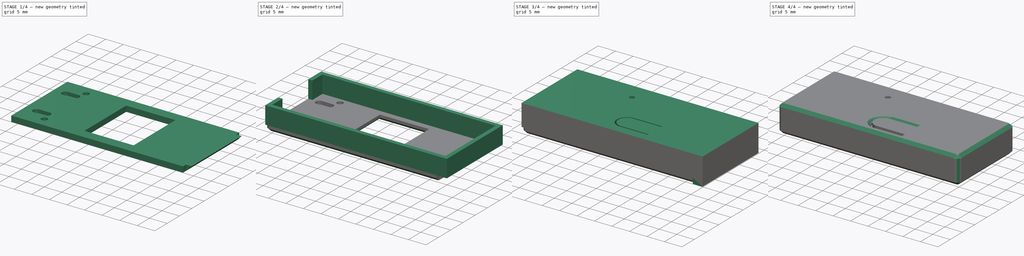
[diagram: build sequence overview — one tinted view per stage of 4, left to right]
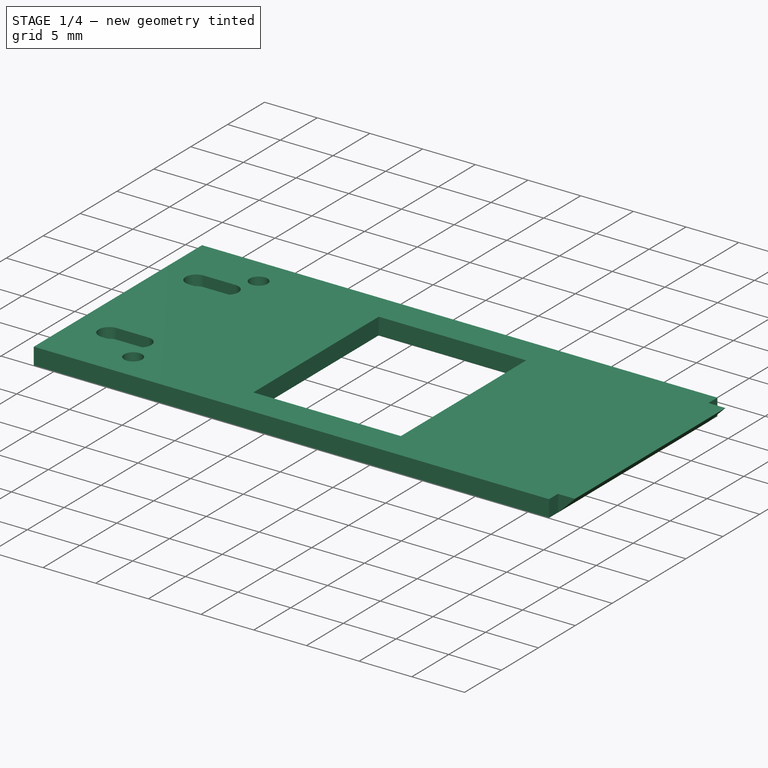
[diagram: stage 1 of 4 — iso view after this stage's code; geometry added in this stage tinted green]
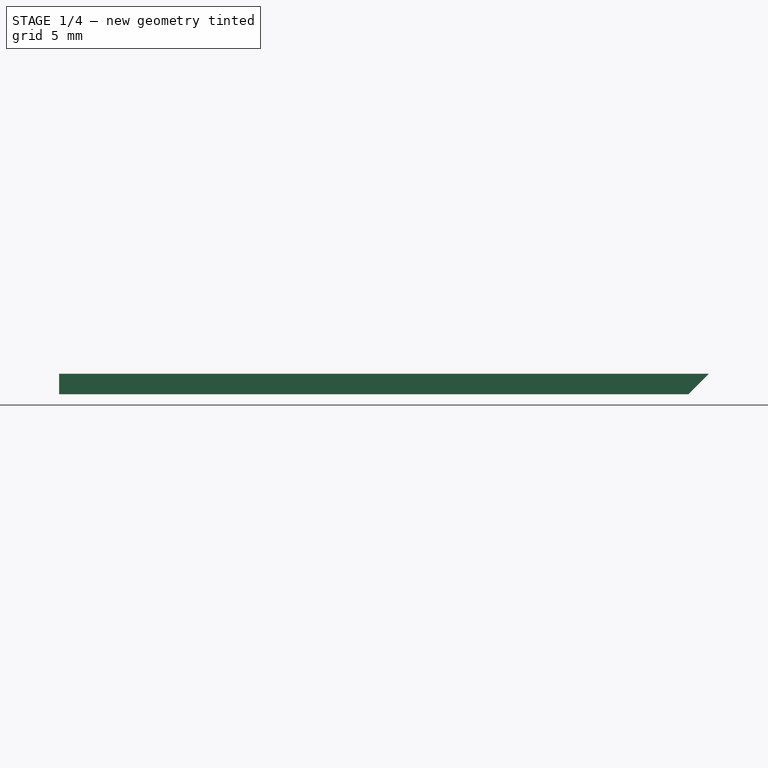
[diagram: stage 1 of 4 — front view after this stage's code; geometry added in this stage tinted green]
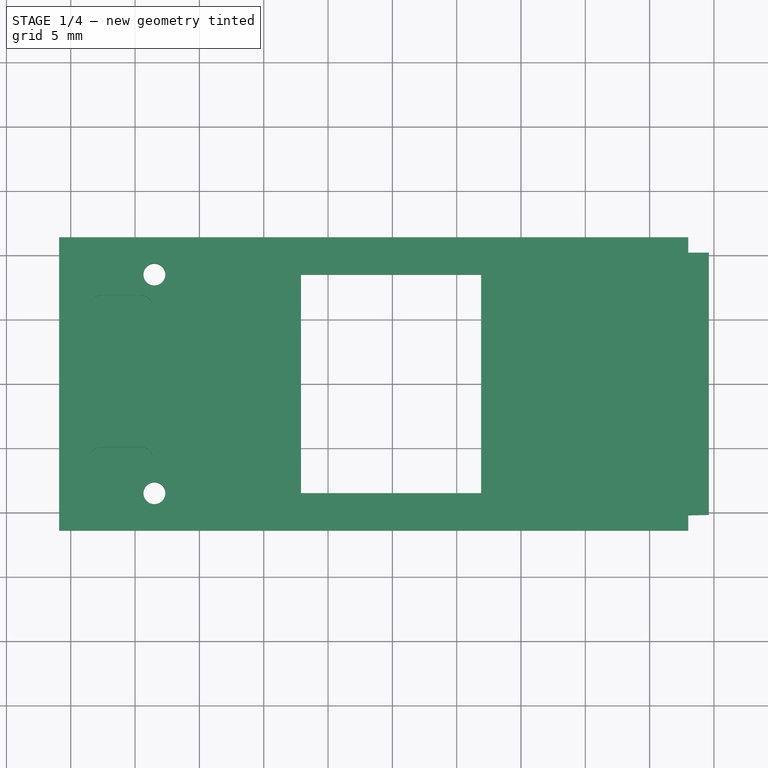
[diagram: stage 1 of 4 — top view after this stage's code; geometry added in this stage tinted green]
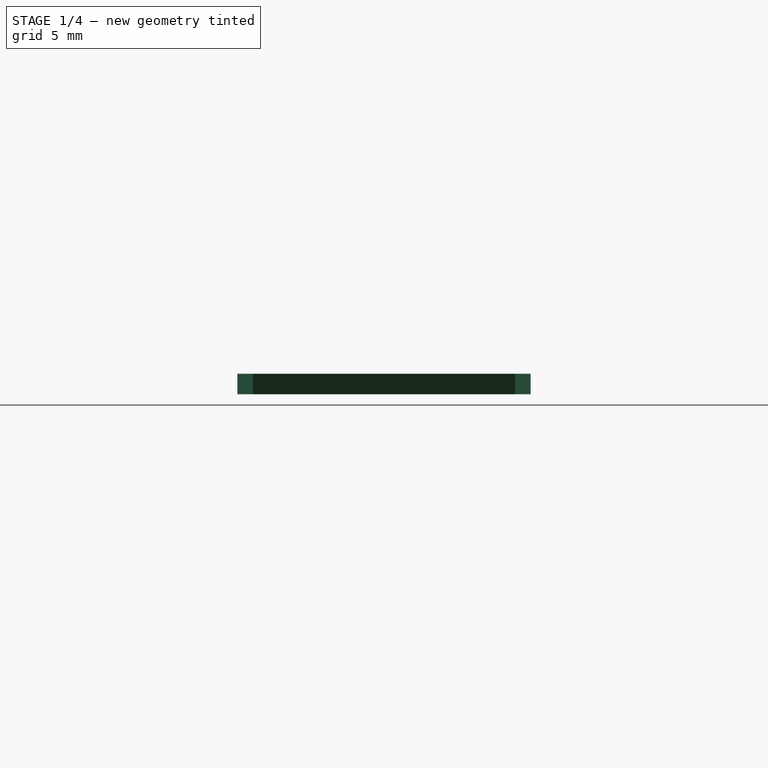
[diagram: stage 1 of 4 — right view after this stage's code; geometry added in this stage tinted green]
FCSTD DOCUMENT  (FreeCAD 1.0R)
Label: housing
License: All rights reserved
LicenseURL: https://en.wikipedia.org/wiki/All_rights_reserved
objects: Sketcher::SketchObject×7, PartDesign::Pad×6, PartDesign::Chamfer×4, PartDesign::Fillet×2, PartDesign::Body×2, PartDesign::Pocket×1
note: 55 computed .brp shape members not serialized (recipe doc carries the construction recipe); baked Part::Feature solids carry a one-line shape summary decoded from their .brp

FEATURE [Sketcher::SketchObject] Sketch005
  ArcFitTolerance = 1e-06
  AttachmentSupport = -> [XY_Plane001]
  FullyConstrained = true
  MakeInternals = false
  MapMode = 5
  sketch-geometry (18):
    g0: LineSegment [constr] StartX=-25.9 StartY=11.4 StartZ=0 EndX=-25.9 EndY=-11.4 EndZ=0
    g1: LineSegment [constr] StartX=-25.9 StartY=-11.4 StartZ=0 EndX=25.9 EndY=-11.4 EndZ=0
    g2: LineSegment [constr] StartX=25.9 StartY=-11.4 StartZ=0 EndX=25.9 EndY=11.4 EndZ=0
    g3: LineSegment [constr] StartX=25.9 StartY=11.4 StartZ=0 EndX=-25.9 EndY=11.4 EndZ=0
    g4: LineSegment StartX=-25.9 StartY=-11.4 StartZ=0 EndX=23 EndY=-11.4 EndZ=0
    g5: LineSegment StartX=23 StartY=11.4 StartZ=0 EndX=-25.9 EndY=11.4 EndZ=0
    g6: LineSegment StartX=-25.9 StartY=11.4 StartZ=0 EndX=-25.9 EndY=-11.4 EndZ=0
    g7: LineSegment StartX=23 StartY=11.4 StartZ=0 EndX=23 EndY=10.2 EndZ=0
    g8: LineSegment StartX=23 StartY=10.2 StartZ=0 EndX=24.6 EndY=10.2 EndZ=0
    g9: LineSegment StartX=24.6 StartY=10.2 StartZ=0 EndX=24.6 EndY=-10.2 EndZ=0
    g10: LineSegment StartX=24.6 StartY=-10.2 StartZ=0 EndX=23 EndY=-10.2 EndZ=0
    g11: LineSegment StartX=23 StartY=-10.2 StartZ=0 EndX=23 EndY=-11.4 EndZ=0
    g12: Circle CenterX=-18.5 CenterY=8.5 CenterZ=0 NormalX=0 NormalY=0 NormalZ=1 AngleXU=0 Radius=0.85
    g13: Circle CenterX=-18.5 CenterY=-8.5 CenterZ=0 NormalX=0 NormalY=0 NormalZ=1 AngleXU=0 Radius=0.85
    g14: LineSegment StartX=-7.1 StartY=8.5 StartZ=0 EndX=-7.1 EndY=-8.5 EndZ=0
    g15: LineSegment StartX=-7.1 StartY=-8.5 StartZ=0 EndX=6.9 EndY=-8.5 EndZ=0
    g16: LineSegment StartX=6.9 StartY=-8.5 StartZ=0 EndX=6.9 EndY=8.5 EndZ=0
    g17: LineSegment StartX=6.9 StartY=8.5 StartZ=0 EndX=-7.1 EndY=8.5 EndZ=0
  constraints (48):
    c: Coincident(g0,g1)
    c: Coincident(g1,g2)
    c: Coincident(g2,g3)
    c: Coincident(g3,g0)
    c: Vertical(g2)
    c: Horizontal(g1)
    c: Symmetric(g0,g1,g-1)
    c: Symmetric(g2,g0,g-1)
    c: DistanceY(g0,g0) = 22.8
    c: DistanceX(g3,g3) = 51.8
    c: Coincident(g5,g6)
    c: Coincident(g6,g4)
    c: Horizontal(g4)
    c: Horizontal(g5)
    c: Vertical(g6)
    c: Coincident(g4,g0)
    c: PointOnObject(g5,g3)
    c: DistanceX(g5,g2) = 2.9
    c: Coincident(g5,g7)
    c: Vertical(g7)
    c: Coincident(g7,g8)
    c: Horizontal(g8)
    c: Coincident(g8,g9)
    c: Vertical(g9)
    c: Coincident(g9,g10)
    c: Horizontal(g10)
    c: Coincident(g10,g11)
    c: Coincident(g11,g4)
    c: Vertical(g11)
    c: Symmetric(g7,g10,g-1)
    c: DistanceY(g7,g5) = 1.2
    c: DistanceX(g8,g2) = 1.3
    c: Symmetric(g12,g13,g-1)
    c: Equal(g12,g13)
    c: DistanceX(g0,g12) = 7.4
    c: DistanceY(g12,g0) = 2.9
    c: Diameter(g12) = 1.7
    c: Coincident(g14,g15)
    c: Coincident(g15,g16)
    c: Coincident(g16,g17)
    c: Coincident(g17,g14)
    c: Vertical(g14)
    c: Horizontal(g15)
    c: Horizontal(g17)
    c: Symmetric(g16,g15,g-1)
    c: DistanceY(g16,g16) = 17
    c: DistanceX(g15,g15) = 14
    c: DistanceX(g16,g2) = 19
FEATURE [PartDesign::Pad] Pad005
  Direction = (0,0,1)
  Length = 1.6
  Length2 = 10
  Profile = -> Sketch005
  ReferenceAxis = -> Sketch005 [N_Axis]
  Refine = true
  Reversed = true
  Suppressed = false
  Type = 0
FEATURE [PartDesign::Chamfer] Chamfer001
  Angle = 45
  Base = -> Pad005 [Edge19]
  BaseFeature = -> Pad005
  ChamferType = 0
  FlipDirection = false
  Refine = true
  Size = 1.59
  Size2 = 1
  SupportTransform = false
  Suppressed = false
  UseAllEdges = false
FEATURE [PartDesign::Body] Body  label="hat"
  AllowCompound = false
  Group = -> [Sketch,Pad,Sketch001,Pad001,Sketch002,Pad002,Sketch003,Pad003,Sketch004,Pad004,Chamfer,Fillet001,Chamfer003]
  Origin = -> Origin
  Tip = -> Chamfer003
FEATURE [Sketcher::SketchObject] Sketch006
  ArcFitTolerance = 1e-06
  AttachmentSupport = -> [Chamfer001]
  ExternalGeometry = -> [Sketch005]
  FullyConstrained = true
  MakeInternals = false
  MapMode = 5
  sketch-geometry (8):
    g0: ArcOfCircle CenterX=-22.6 CenterY=5.9 CenterZ=0 NormalX=0 NormalY=0 NormalZ=1 AngleXU=0 Radius=1 StartAngle=1.5708 EndAngle=4.71239
    g1: ArcOfCircle CenterX=-19.6 CenterY=5.9 CenterZ=0 NormalX=0 NormalY=0 NormalZ=1 AngleXU=0 Radius=1 StartAngle=4.71239 EndAngle=7.85398
    g2: LineSegment StartX=-22.6 StartY=6.9 StartZ=0 EndX=-19.6 EndY=6.9 EndZ=0
    g3: LineSegment StartX=-22.6 StartY=4.9 StartZ=0 EndX=-19.6 EndY=4.9 EndZ=0
    g4: ArcOfCircle CenterX=-22.6 CenterY=-5.9 CenterZ=0 NormalX=0 NormalY=0 NormalZ=1 AngleXU=0 Radius=1 StartAngle=1.5708 EndAngle=4.71239
    g5: ArcOfCircle CenterX=-19.6 CenterY=-5.9 CenterZ=0 NormalX=0 NormalY=0 NormalZ=1 AngleXU=0 Radius=1 StartAngle=4.71239 EndAngle=7.85398
    g6: LineSegment StartX=-22.6 StartY=-4.9 StartZ=0 EndX=-19.6 EndY=-4.9 EndZ=0
    g7: LineSegment StartX=-22.6 StartY=-6.9 StartZ=0 EndX=-19.6 EndY=-6.9 EndZ=0
  constraints (18):
    c: Tangent(g0,g2) = 1.5708
    c: Tangent(g0,g3) = -1.5708
    c: Tangent(g1,g2) = 1.5708
    c: Tangent(g1,g3) = -1.5708
    c: Equal(g0,g1)
    c: Tangent(g4,g6) = 1.5708
    c: Tangent(g4,g7) = -1.5708
    c: Tangent(g5,g6) = 1.5708
    c: Tangent(g5,g7) = -1.5708
    c: Equal(g4,g5)
    c: Horizontal(g6)
    c: Equal(g1,g5)
    c: Symmetric(g5,g1,g-1)
    c: Symmetric(g0,g4,g-1)
    c: DistanceY(g0,g0) = 2
    c: DistanceX(g2,g2) = 3
    c: DistanceX(g-3,g0) = 3.3
    c: DistanceY(g0,g-3) = 5.5
FEATURE [PartDesign::Pocket] Pocket
  BaseFeature = -> Chamfer001
  Direction = (0,0,-1)
  Length = 1
  Length2 = 5
  Profile = -> Sketch006
  ReferenceAxis = -> Sketch006 [N_Axis]
  Refine = true
  Suppressed = false
  Type = 0
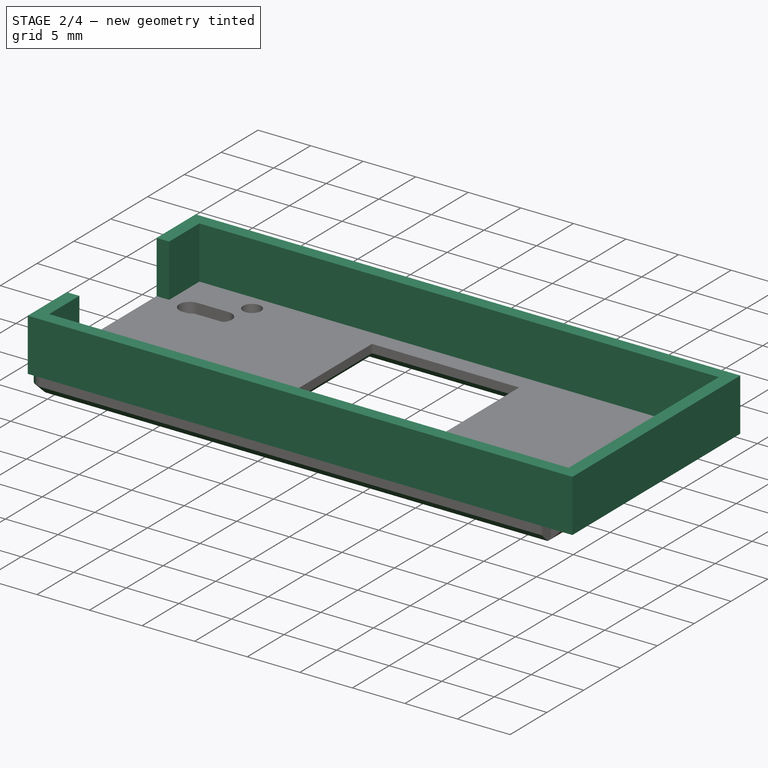
[diagram: stage 2 of 4 — iso view after this stage's code; geometry added in this stage tinted green]
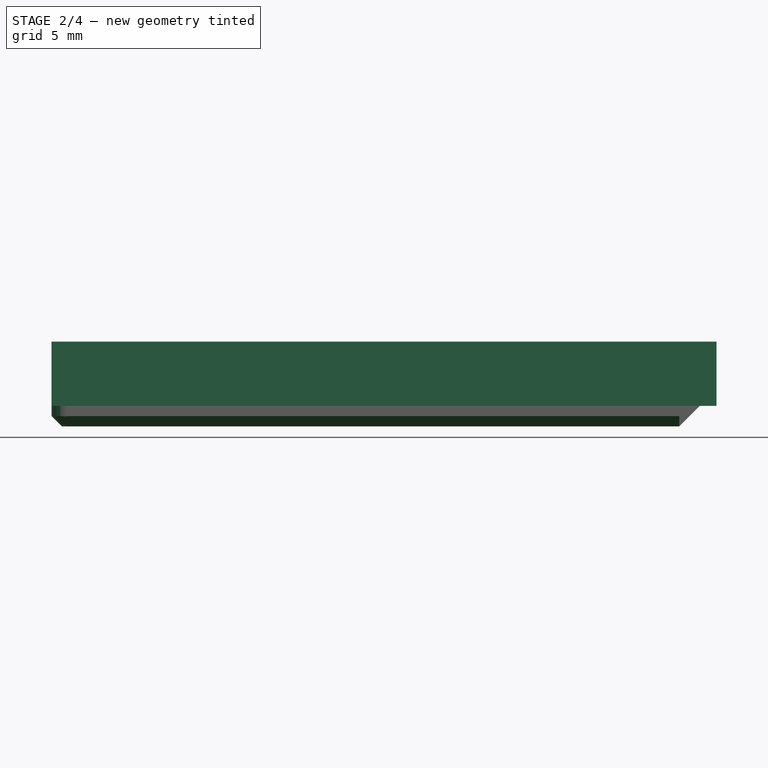
[diagram: stage 2 of 4 — front view after this stage's code; geometry added in this stage tinted green]
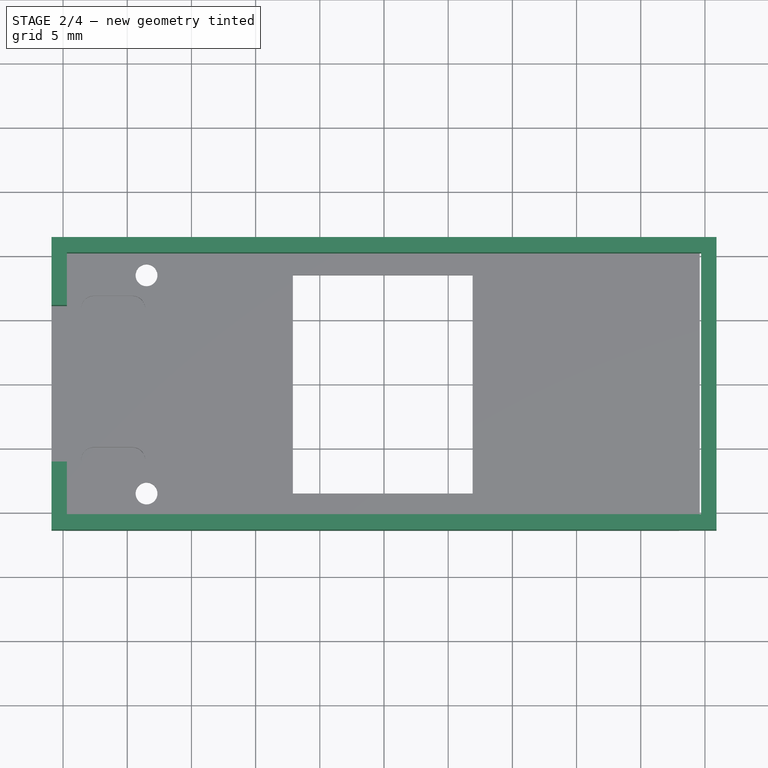
[diagram: stage 2 of 4 — top view after this stage's code; geometry added in this stage tinted green]
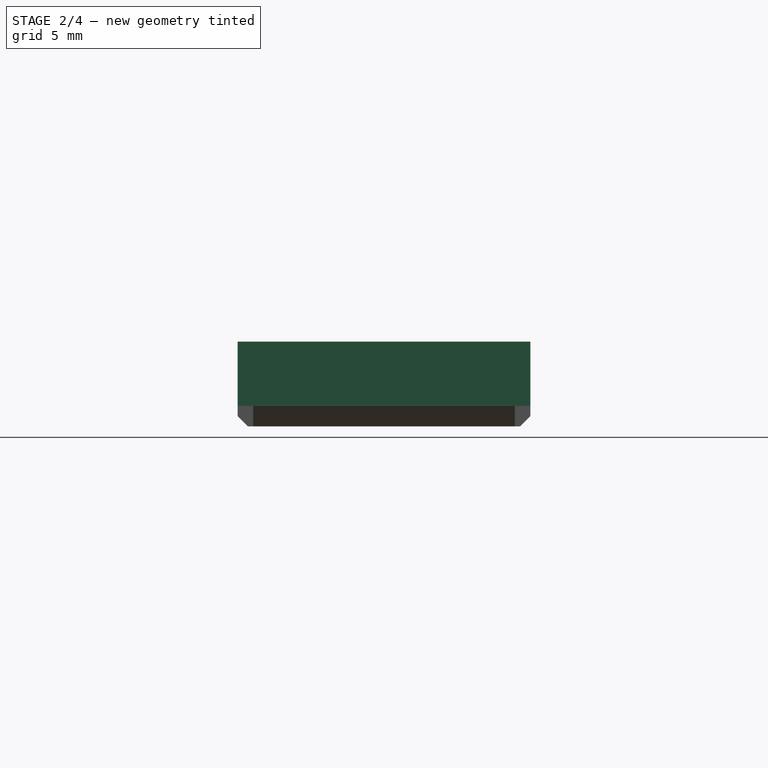
[diagram: stage 2 of 4 — right view after this stage's code; geometry added in this stage tinted green]
FEATURE [Sketcher::SketchObject] Sketch
  ArcFitTolerance = 1e-06
  AttachmentSupport = -> [XY_Plane]
  FullyConstrained = true
  MakeInternals = false
  MapMode = 5
  sketch-geometry (12):
    g0: LineSegment StartX=-25.9 StartY=6.1 StartZ=0 EndX=-24.7 EndY=6.1 EndZ=0
    g1: LineSegment StartX=-24.7 StartY=6.1 StartZ=0 EndX=-24.7 EndY=10.2 EndZ=0
    g2: LineSegment StartX=-24.7 StartY=10.2 StartZ=0 EndX=24.7 EndY=10.2 EndZ=0
    g3: LineSegment StartX=24.7 StartY=10.2 StartZ=0 EndX=24.7 EndY=-10.2 EndZ=0
    g4: LineSegment StartX=24.7 StartY=-10.2 StartZ=0 EndX=-24.7 EndY=-10.2 EndZ=0
    g5: LineSegment StartX=-24.7 StartY=-10.2 StartZ=0 EndX=-24.7 EndY=-6.1 EndZ=0
    g6: LineSegment StartX=-24.7 StartY=-6.1 StartZ=0 EndX=-25.9 EndY=-6.1 EndZ=0
    g7: LineSegment StartX=-25.9 StartY=-6.1 StartZ=0 EndX=-25.9 EndY=-11.4 EndZ=0
    g8: LineSegment StartX=-25.9 StartY=-11.4 StartZ=0 EndX=25.9 EndY=-11.4 EndZ=0
    g9: LineSegment StartX=25.9 StartY=-11.4 StartZ=0 EndX=25.9 EndY=11.4 EndZ=0
    g10: LineSegment StartX=25.9 StartY=11.4 StartZ=0 EndX=-25.9 EndY=11.4 EndZ=0
    g11: LineSegment StartX=-25.9 StartY=11.4 StartZ=0 EndX=-25.9 EndY=6.1 EndZ=0
  constraints (32):
    c: Horizontal(g0)
    c: Coincident(g1,g0)
    c: Vertical(g1)
    c: Coincident(g1,g2)
    c: Horizontal(g2)
    c: Vertical(g3)
    c: Coincident(g3,g4)
    c: Horizontal(g4)
    c: Coincident(g4,g5)
    c: Vertical(g5)
    c: Coincident(g5,g6)
    c: Coincident(g6,g7)
    c: Vertical(g7)
    c: Coincident(g7,g8)
    c: Horizontal(g8)
    c: Coincident(g8,g9)
    c: Vertical(g9)
    c: Coincident(g9,g10)
    c: Coincident(g10,g11)
    c: Coincident(g11,g0)
    c: Vertical(g11)
    c: Horizontal(g6)
    c: Symmetric(g10,g8,g-1)
    c: Symmetric(g7,g9,g-1)
    c: Symmetric(g1,g3,g-1)
    c: Symmetric(g5,g0,g-1)
    c: DistanceY(g1,g10) = 1.2
    c: DistanceX(g10,g1) = 1.2
    c: DistanceY(g6,g0) = 12.2
    c: DistanceY(g4,g1) = 20.4
    c: DistanceX(g4,g4) = 49.4
    c: Coincident(g2,g3)
FEATURE [PartDesign::Pad] Pad
  Direction = (0,0,1)
  Length = 5
  Length2 = 10
  Profile = -> Sketch
  ReferenceAxis = -> Sketch [N_Axis]
  Refine = true
  Suppressed = false
  Type = 0
FEATURE [PartDesign::Fillet] Fillet
  Base = -> Pocket [Edge47,Edge46]
  BaseFeature = -> Pocket
  Radius = 1.2
  Refine = true
  SupportTransform = false
  Suppressed = false
  UseAllEdges = false
FEATURE [PartDesign::Chamfer] Chamfer004
  Angle = 45
  Base = -> Fillet [Edge42,Edge33,Edge38,Edge29,Edge27,Edge71,Edge74,Edge69,Edge73,Edge48,Edge66]
  BaseFeature = -> Fillet
  ChamferType = 0
  FlipDirection = false
  Refine = true
  Size = 0.8
  Size2 = 1
  SupportTransform = false
  Suppressed = false
  UseAllEdges = false
FEATURE [PartDesign::Body] Body001  label="plate"
  AllowCompound = false
  Group = -> [Sketch005,Pad005,Chamfer001,Sketch006,Pocket,Fillet,Chamfer004]
  Origin = -> Origin001
  Tip = -> Chamfer004
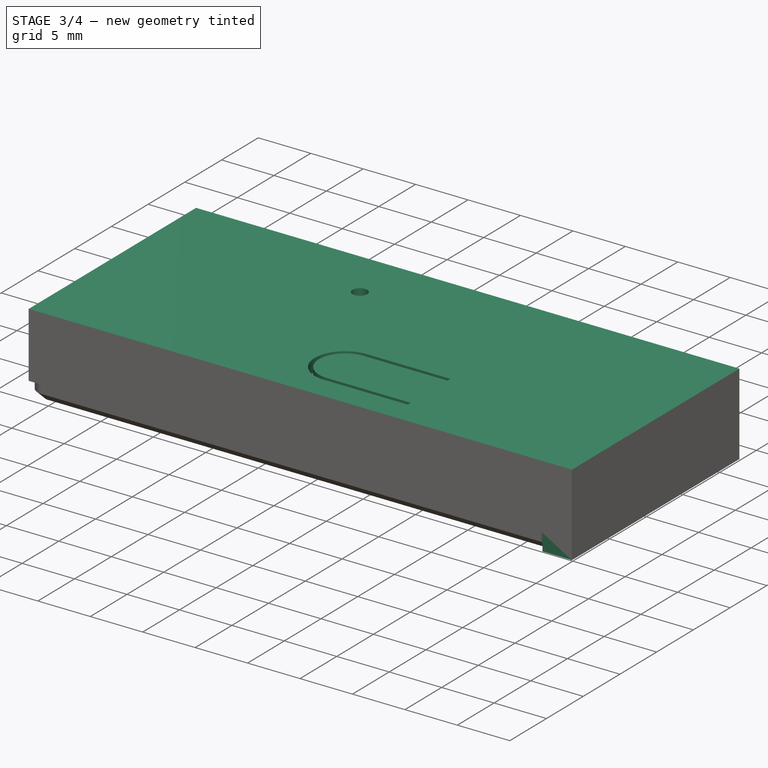
[diagram: stage 3 of 4 — iso view after this stage's code; geometry added in this stage tinted green]
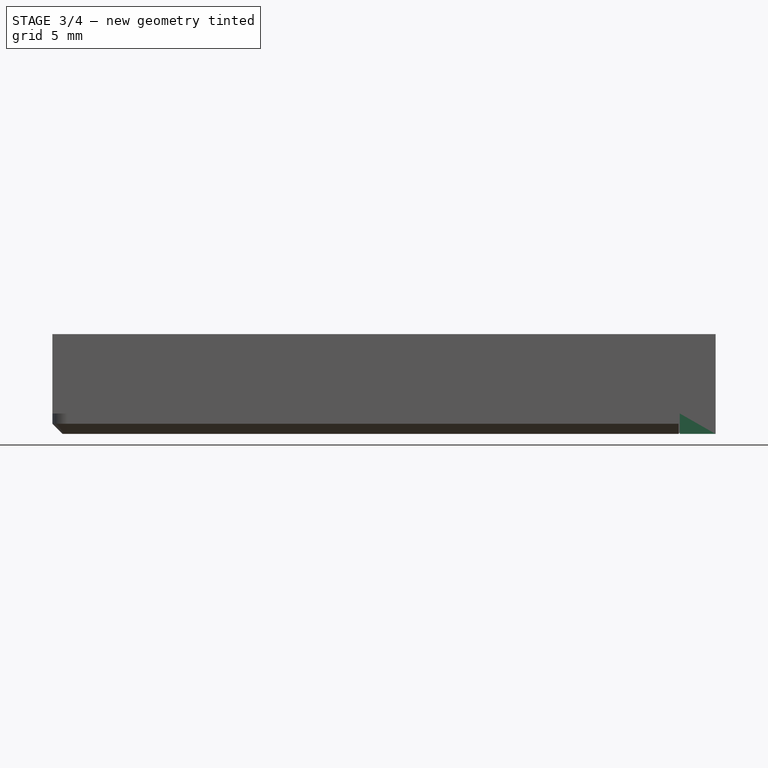
[diagram: stage 3 of 4 — front view after this stage's code; geometry added in this stage tinted green]
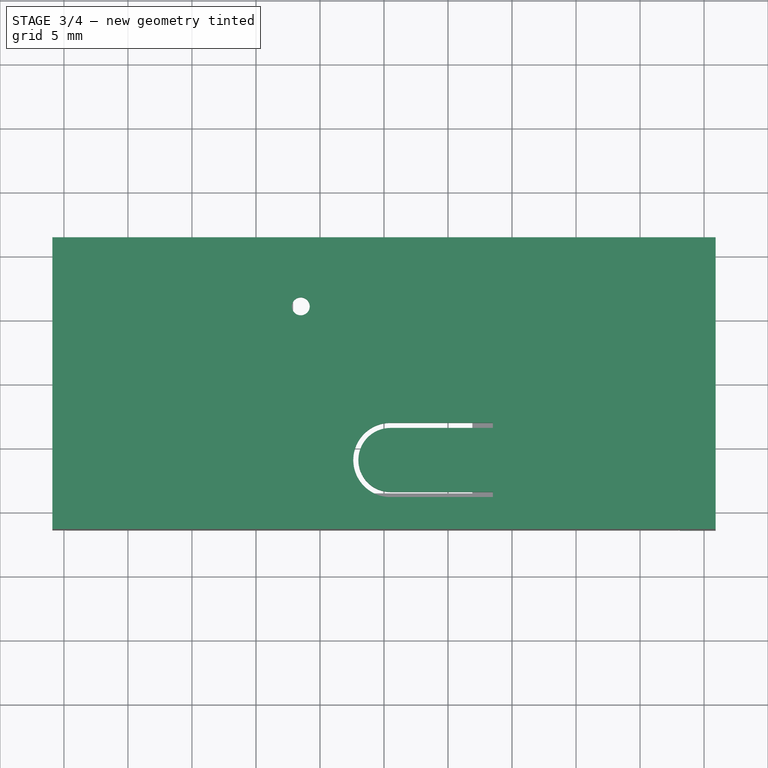
[diagram: stage 3 of 4 — top view after this stage's code; geometry added in this stage tinted green]
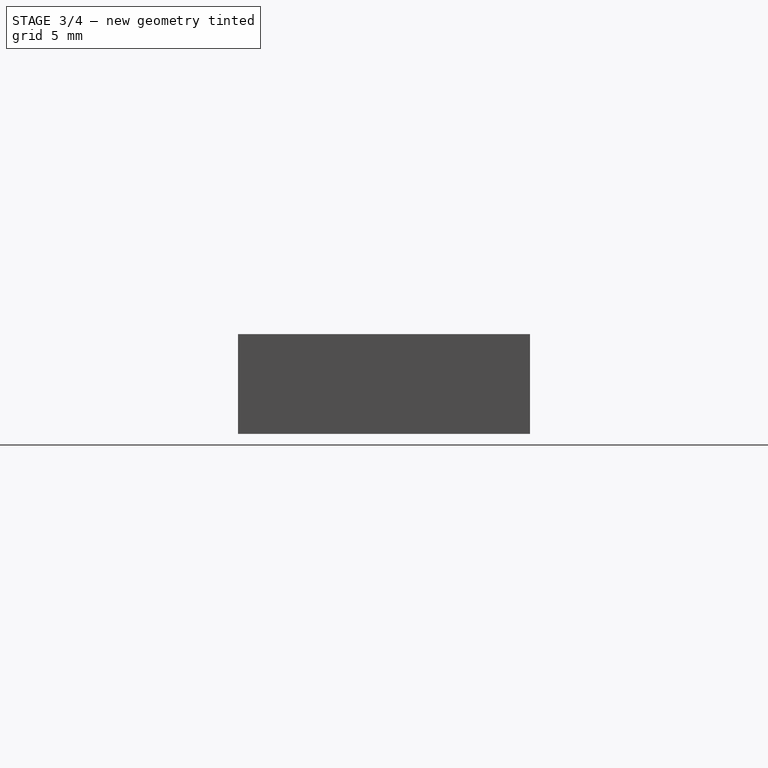
[diagram: stage 3 of 4 — right view after this stage's code; geometry added in this stage tinted green]
FEATURE [Sketcher::SketchObject] Sketch001
  ArcFitTolerance = 1e-06
  AttachmentSupport = -> [Pad]
  ExternalGeometry = -> [Pad]
  FullyConstrained = true
  MakeInternals = false
  MapMode = 5
  Placement = pos=(0,0,5) rot=(0,0,1;0rad)
  sketch-geometry (13):
    g0: LineSegment StartX=-25.9 StartY=11.4 StartZ=0 EndX=-25.9 EndY=-11.4 EndZ=0
    g1: LineSegment StartX=-25.9 StartY=-11.4 StartZ=0 EndX=25.9 EndY=-11.4 EndZ=0
    g2: LineSegment StartX=25.9 StartY=-11.4 StartZ=0 EndX=25.9 EndY=11.4 EndZ=0
    g3: LineSegment StartX=25.9 StartY=11.4 StartZ=0 EndX=-25.9 EndY=11.4 EndZ=0
    g4: ArcOfCircle CenterX=0.5 CenterY=-6 CenterZ=0 NormalX=0 NormalY=0 NormalZ=1 AngleXU=0 Radius=2.5 StartAngle=1.5708 EndAngle=4.71239
    g5: ArcOfCircle CenterX=0.5 CenterY=-6 CenterZ=0 NormalX=0 NormalY=0 NormalZ=1 AngleXU=0 Radius=2.9 StartAngle=1.5708 EndAngle=4.71239
    g6: LineSegment StartX=0.5 StartY=-3.5 StartZ=0 EndX=8.5 EndY=-3.5 EndZ=0
    g7: LineSegment StartX=0.5 StartY=-3.1 StartZ=0 EndX=8.5 EndY=-3.1 EndZ=0
    g8: LineSegment StartX=0.5 StartY=-8.5 StartZ=0 EndX=8.5 EndY=-8.5 EndZ=0
    g9: LineSegment StartX=0.5 StartY=-8.9 StartZ=0 EndX=8.5 EndY=-8.9 EndZ=0
    g10: LineSegment StartX=8.5 StartY=-3.1 StartZ=0 EndX=8.5 EndY=-3.5 EndZ=0
    g11: LineSegment StartX=8.5 StartY=-8.5 StartZ=0 EndX=8.5 EndY=-8.9 EndZ=0
    g12: Circle CenterX=-6.5 CenterY=6 CenterZ=0 NormalX=0 NormalY=0 NormalZ=1 AngleXU=0 Radius=0.7
  constraints (32):
    c: Coincident(g-3,g0)
    c: Coincident(g0,g-5)
    c: Coincident(g0,g1)
    c: Coincident(g1,g-5)
    c: Coincident(g1,g2)
    c: Coincident(g2,g-4)
    c: Coincident(g2,g3)
    c: Coincident(g3,g0)
    c: Coincident(g5,g4)
    c: Horizontal(g6)
    c: Horizontal(g7)
    c: Horizontal(g8)
    c: Horizontal(g9)
    c: Coincident(g10,g7)
    c: Coincident(g10,g6)
    c: Coincident(g11,g8)
    c: Coincident(g11,g9)
    c: Vertical(g11)
    c: Vertical(g10)
    c: Diameter(g4) = 5
    c: Tangent(g6,g4) = 1.5708
    c: Tangent(g8,g4) = -1.5708
    c: Tangent(g7,g5) = 1.5708
    c: Tangent(g9,g5) = -1.5708
    c: Equal(g6,g8)
    c: Distance(g4,g5) = 0.4
    c: DistanceX(g7,g7) = 8
    c: Diameter(g12) = 1.4
    c: DistanceX(g-6,g4) = 25.2
    c: DistanceY(g-6,g4) = 4.2
    c: DistanceX(g-7,g12) = 18.2
    c: DistanceY(g12,g-7) = 4.2
FEATURE [PartDesign::Pad] Pad001
  BaseFeature = -> Pad
  Direction = (0,0,1)
  Length = 1.2
  Length2 = 10
  Profile = -> Sketch001
  ReferenceAxis = -> Sketch001 [N_Axis]
  Refine = true
  Suppressed = false
  Type = 0
FEATURE [Sketcher::SketchObject] Sketch002
  ArcFitTolerance = 1e-06
  AttachmentSupport = -> [Pad001]
  ExternalGeometry = -> [Pad001]
  FullyConstrained = true
  MakeInternals = false
  MapMode = 5
  Placement = pos=(0,0,5) rot=(1,0,0;3.14159rad)
  sketch-geometry (18):
    g0: LineSegment StartX=-24.7 StartY=6.1 StartZ=0 EndX=-16.7 EndY=6.1 EndZ=0
    g1: LineSegment StartX=-16.7 StartY=6.1 StartZ=0 EndX=-16.7 EndY=10.2 EndZ=0
    g2: LineSegment StartX=-16.7 StartY=10.2 StartZ=0 EndX=-24.7 EndY=10.2 EndZ=0
    g3: LineSegment StartX=-24.7 StartY=10.2 StartZ=0 EndX=-24.7 EndY=6.1 EndZ=0
    g4: LineSegment StartX=-24.7 StartY=-6.1 StartZ=0 EndX=-24.7 EndY=-10.2 EndZ=0
    g5: LineSegment StartX=-24.7 StartY=-10.2 StartZ=0 EndX=-16.7 EndY=-10.2 EndZ=0
    g6: LineSegment StartX=-16.7 StartY=-10.2 StartZ=0 EndX=-16.7 EndY=-6.1 EndZ=0
    g7: LineSegment StartX=-16.7 StartY=-6.1 StartZ=0 EndX=-24.7 EndY=-6.1 EndZ=0
    g8: Circle CenterX=-18.5 CenterY=8.5 CenterZ=0 NormalX=0 NormalY=0 NormalZ=1 AngleXU=0 Radius=0.7
    g9: Circle CenterX=-18.5 CenterY=-8.5 CenterZ=0 NormalX=0 NormalY=0 NormalZ=1 AngleXU=0 Radius=0.7
    g10: LineSegment StartX=6.5 StartY=-10.2 StartZ=0 EndX=14.5 EndY=-10.2 EndZ=0
    g11: LineSegment StartX=14.5 StartY=-10.2 StartZ=0 EndX=14.5 EndY=-8.7 EndZ=0
    g12: LineSegment StartX=14.5 StartY=-8.7 StartZ=0 EndX=6.5 EndY=-8.7 EndZ=0
    g13: LineSegment StartX=6.5 StartY=-8.7 StartZ=0 EndX=6.5 EndY=-10.2 EndZ=0
    g14: LineSegment StartX=-6.5 StartY=10.2 StartZ=0 EndX=-6.5 EndY=3.2 EndZ=0
    g15: LineSegment StartX=-6.5 StartY=3.2 StartZ=0 EndX=-4.9 EndY=3.2 EndZ=0
    g16: LineSegment StartX=-4.9 StartY=3.2 StartZ=0 EndX=-4.9 EndY=10.2 EndZ=0
    g17: LineSegment StartX=-4.9 StartY=10.2 StartZ=0 EndX=-6.5 EndY=10.2 EndZ=0
  constraints (50):
    c: Coincident(g0,g1)
    c: Coincident(g1,g2)
    c: Coincident(g2,g3)
    c: Coincident(g3,g0)
    c: Horizontal(g2)
    c: Vertical(g1)
    c: Vertical(g3)
    c: Coincident(g0,g-3)
    c: PointOnObject(g1,g-5)
    c: Coincident(g4,g5)
    c: Coincident(g5,g6)
    c: Coincident(g6,g7)
    c: Coincident(g7,g4)
    c: Vertical(g4)
    c: Horizontal(g5)
    c: Horizontal(g7)
    c: Coincident(g4,g-4)
    c: PointOnObject(g5,g-6)
    c: Symmetric(g0,g6,g-1)
    c: Vertical(g6)
    c: Distance(g0,g0) = 8
    c: Diameter(g8) = 1.4
    c: Equal(g8,g9)
    c: DistanceY(g8,g1) = 1.7
    c: DistanceX(g2,g8) = 6.2
    c: Symmetric(g8,g9,g-1)
    c: Coincident(g10,g11)
    c: Coincident(g11,g12)
    c: Coincident(g12,g13)
    c: Coincident(g13,g10)
    c: Horizontal(g10)
    c: Horizontal(g12)
    c: Vertical(g11)
    c: Vertical(g13)
    c: PointOnObject(g10,g-6)
    c: Coincident(g14,g15)
    c: Coincident(g15,g16)
    c: Coincident(g16,g17)
    c: Coincident(g17,g14)
    c: Vertical(g14)
    c: Vertical(g16)
    c: Horizontal(g15)
    c: Horizontal(g17)
    c: PointOnObject(g14,g-5)
    c: DistanceX(g12,g12) = 8
    c: DistanceY(g13,g13) = 1.5
    c: DistanceX(g4,g10) = 31.2
    c: DistanceX(g15,g15) = 1.6
    c: DistanceX(g2,g14) = 18.2
    c: DistanceY(g14,g14) = 7
FEATURE [PartDesign::Pad] Pad002
  BaseFeature = -> Pad001
  Direction = (0,0,-1)
  Length = 3.4
  Length2 = 10
  Profile = -> Sketch002
  ReferenceAxis = -> Sketch002 [N_Axis]
  Refine = true
  Suppressed = false
  Type = 0
FEATURE [Sketcher::SketchObject] Sketch003
  ArcFitTolerance = 1e-06
  AttachmentSupport = -> [Pad002]
  ExternalGeometry = -> [Pad002]
  FullyConstrained = true
  MakeInternals = false
  MapMode = 5
  Placement = pos=(0,0,5) rot=(1,0,0;3.14159rad)
  sketch-geometry (1):
    g0: Circle CenterX=0.5 CenterY=6 CenterZ=0 NormalX=0 NormalY=0 NormalZ=1 AngleXU=0 Radius=1.9
  constraints (2):
    c: Coincident(g0,g-3)
    c: Diameter(g0) = 3.8
FEATURE [PartDesign::Pad] Pad003
  BaseFeature = -> Pad002
  Direction = (0,0,-1)
  Length = 1.6
  Length2 = 10
  Profile = -> Sketch003
  ReferenceAxis = -> Sketch003 [N_Axis]
  Refine = true
  Suppressed = false
  Type = 0
FEATURE [Sketcher::SketchObject] Sketch004
  ArcFitTolerance = 1e-06
  AttachmentSupport = -> [Pad003]
  ExternalGeometry = -> [Pad003]
  FullyConstrained = true
  MakeInternals = false
  MapMode = 5
  Placement = pos=(0,0,0) rot=(1,0,0;3.14159rad)
  sketch-geometry (4):
    g0: LineSegment StartX=25.9 StartY=11.4 StartZ=0 EndX=23.1 EndY=11.4 EndZ=0
    g1: LineSegment StartX=23.1 StartY=11.4 StartZ=0 EndX=23.1 EndY=-11.4 EndZ=0
    g2: LineSegment StartX=23.1 StartY=-11.4 StartZ=0 EndX=25.9 EndY=-11.4 EndZ=0
    g3: LineSegment StartX=25.9 StartY=-11.4 StartZ=0 EndX=25.9 EndY=11.4 EndZ=0
  constraints (11):
    c: Coincident(g0,g1)
    c: Coincident(g1,g2)
    c: Coincident(g2,g3)
    c: Coincident(g3,g0)
    c: Horizontal(g0)
    c: Horizontal(g2)
    c: Vertical(g1)
    c: Coincident(g0,g-3)
    c: Coincident(g2,g-3)
    c: DistanceX(g0,g-4) = 1.6
    c: DistanceX(g0,g0) = 2.8
FEATURE [PartDesign::Pad] Pad004
  BaseFeature = -> Pad003
  Direction = (0,0,-1)
  Length = 1.6
  Length2 = 10
  Profile = -> Sketch004
  ReferenceAxis = -> Sketch004 [N_Axis]
  Refine = true
  Suppressed = false
  Type = 0
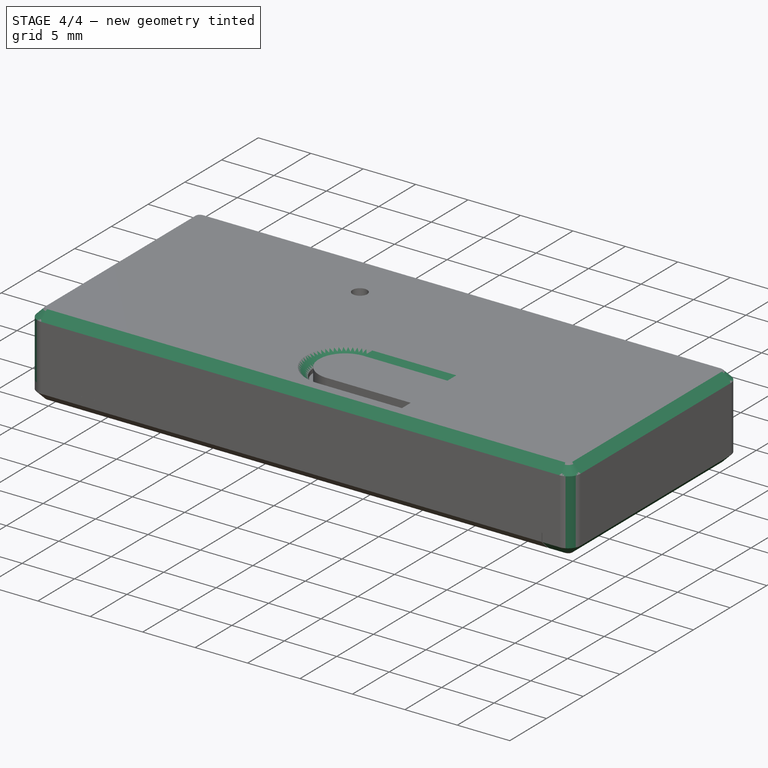
[diagram: stage 4 of 4 — iso view after this stage's code; geometry added in this stage tinted green]
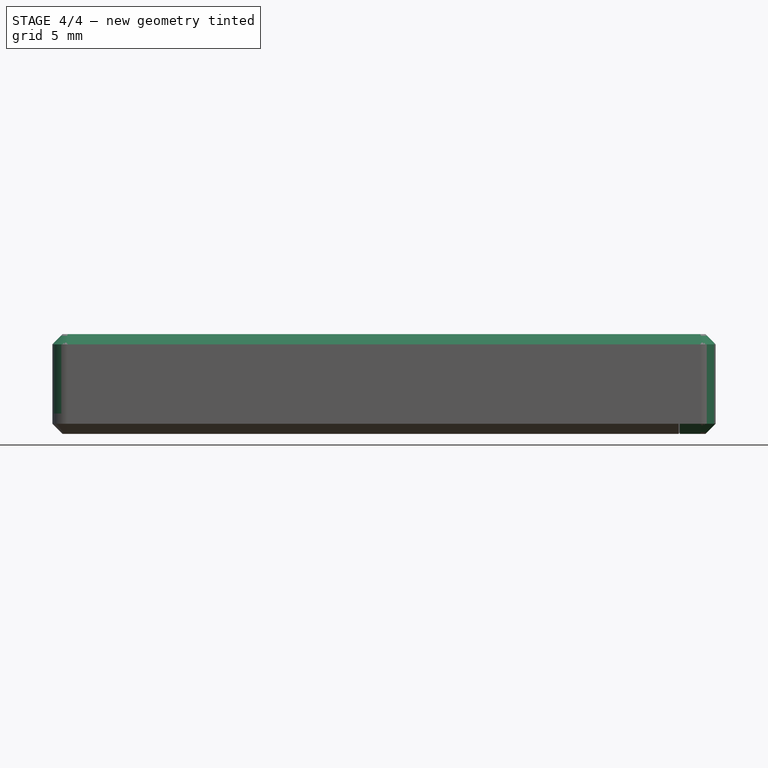
[diagram: stage 4 of 4 — front view after this stage's code; geometry added in this stage tinted green]
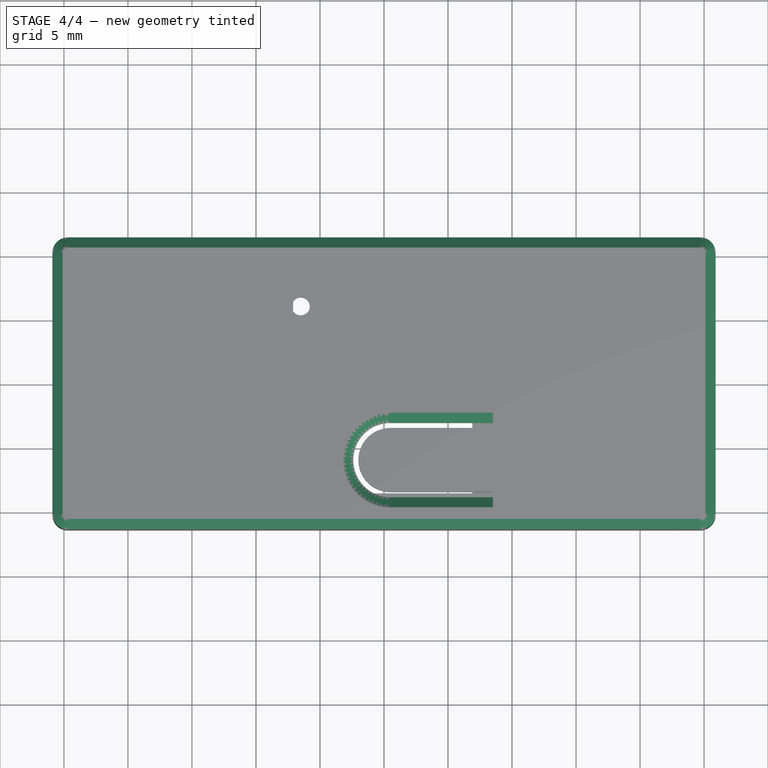
[diagram: stage 4 of 4 — top view after this stage's code; geometry added in this stage tinted green]
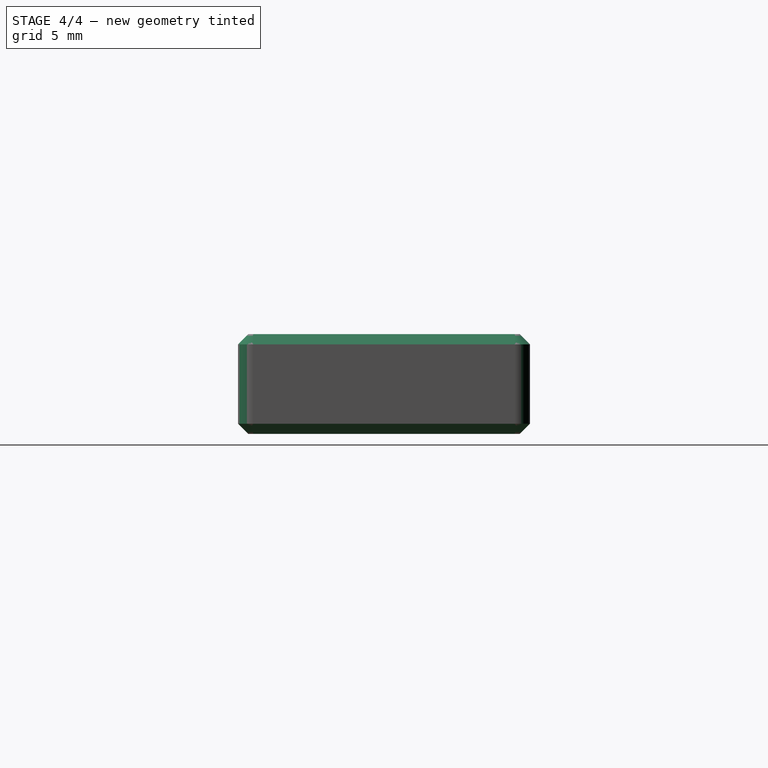
[diagram: stage 4 of 4 — right view after this stage's code; geometry added in this stage tinted green]
FEATURE [PartDesign::Chamfer] Chamfer
  Angle = 45
  Base = -> Pad004 [Edge34]
  BaseFeature = -> Pad004
  ChamferType = 0
  FlipDirection = false
  Refine = true
  Size = 1.59
  Size2 = 1
  SupportTransform = false
  Suppressed = false
  UseAllEdges = false
FEATURE [PartDesign::Fillet] Fillet001
  Base = -> Chamfer [Edge82,Edge84,Edge78,Edge76,Edge89,Edge64,Edge63,Edge54]
  BaseFeature = -> Chamfer
  Radius = 1.2
  Refine = true
  SupportTransform = false
  Suppressed = false
  UseAllEdges = false
FEATURE [PartDesign::Chamfer] Chamfer003
  Angle = 45
  Base = -> Fillet001 [Edge119,Edge117,Edge40,Edge116,Edge118,Edge120,Edge122,Edge121,Edge99,Edge95,Edge93,Edge137,Edge141,Edge145,Edge139,Edge144,Edge90]
  BaseFeature = -> Fillet001
  ChamferType = 0
  FlipDirection = false
  Refine = true
  Size = 0.8
  Size2 = 1
  SupportTransform = false
  Suppressed = false
  UseAllEdges = false
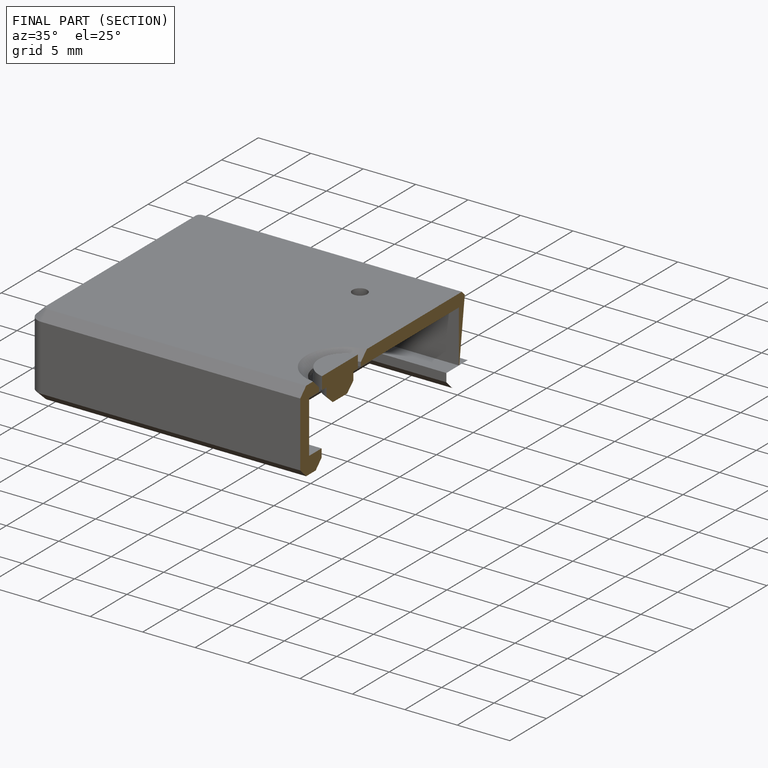
[diagram: finished part — half-section view (interior)]
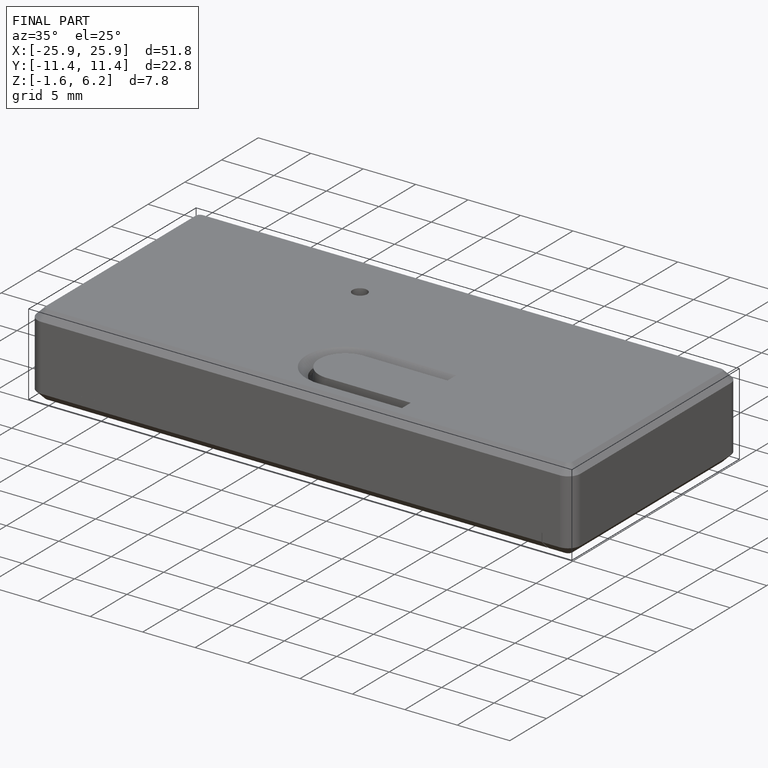
[diagram: finished part — iso view with bounding-box wireframe]
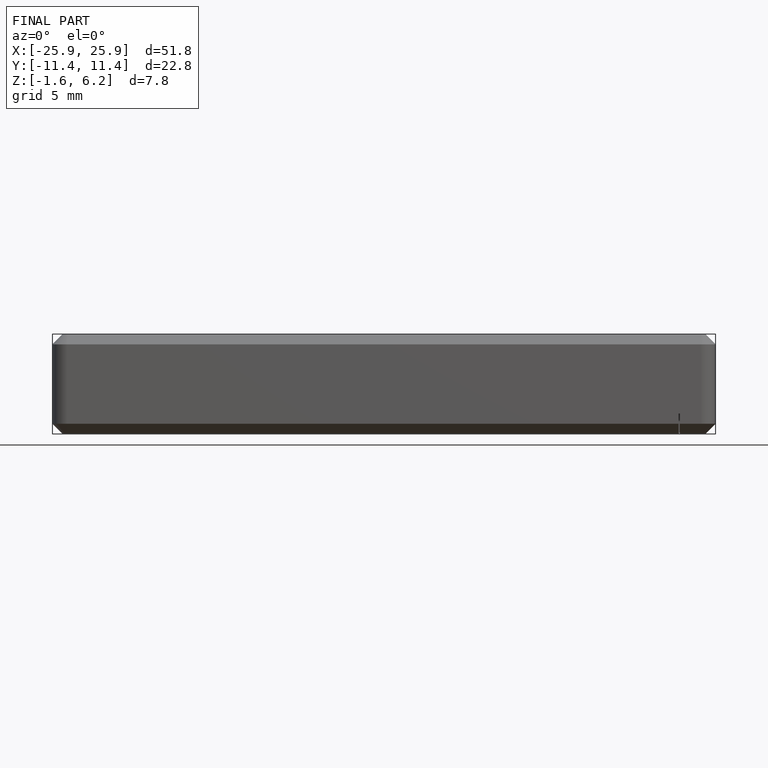
[diagram: finished part — front view with bounding-box wireframe]
